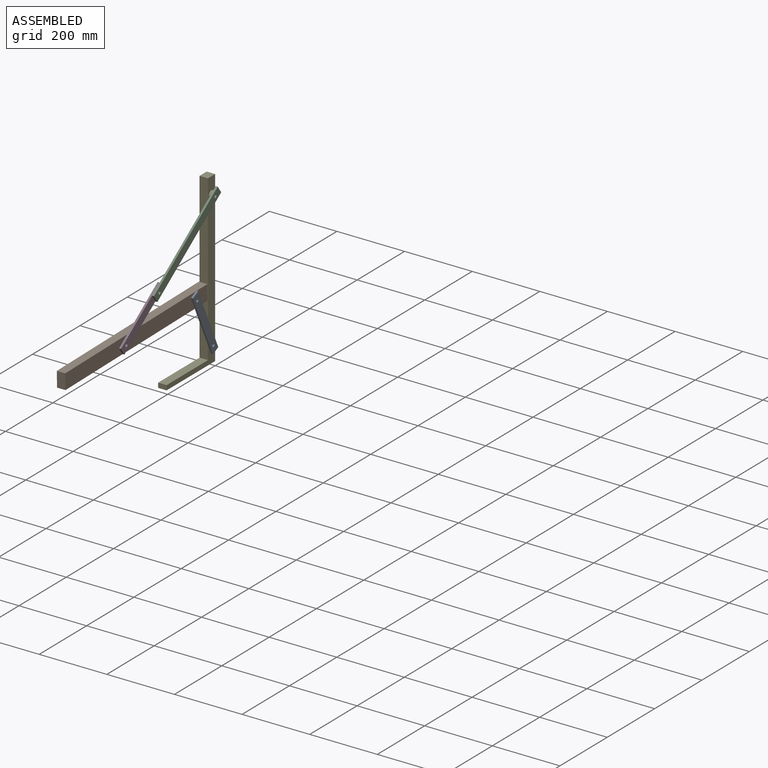
[diagram: assembled view]
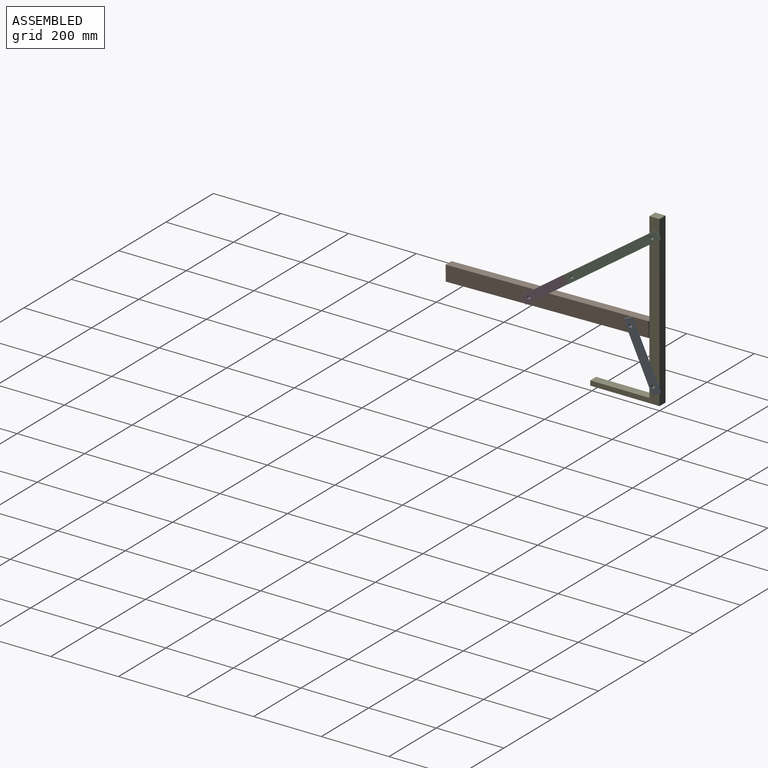
[diagram: assembled view, second angle]
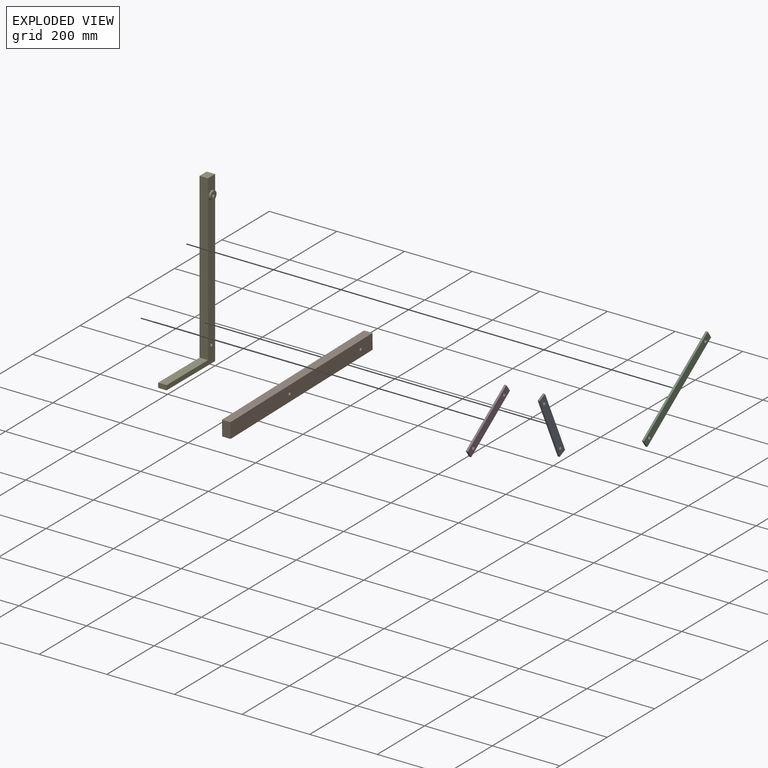
[diagram: exploded view]
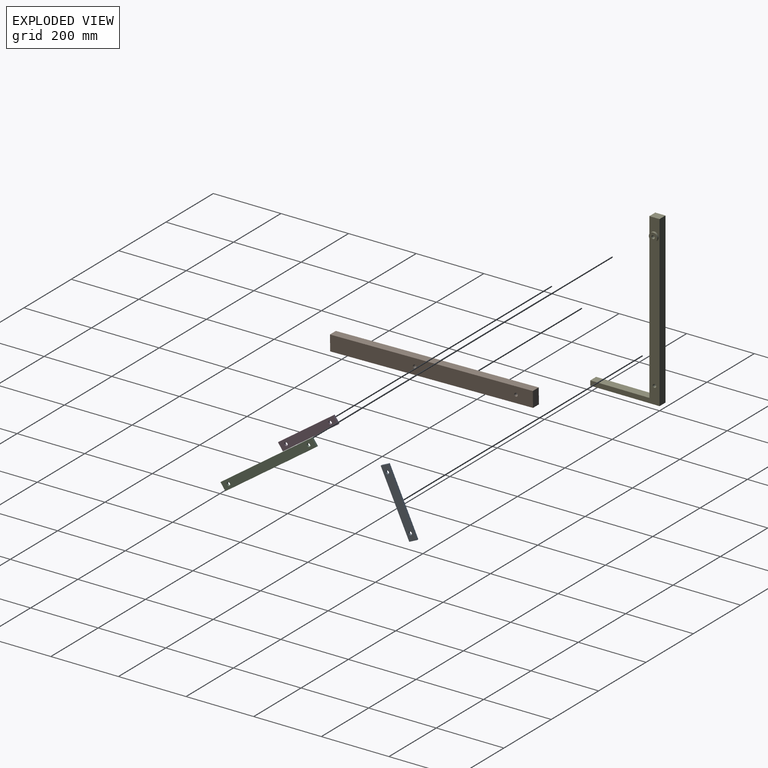
[diagram: exploded view, second angle]
ASSEMBLY  parts=5 mates=6
PART A: 8 faces, bbox 6x200x25 mm
  f0: plane 200x6mm, normal (0,0,1), area 1200mm2, adj f1,f3,f4,f5
  f1: plane 25x6mm, normal (0,-1,0), area 150mm2, adj f0,f2,f4,f5
  f2: plane 200x6mm, normal (0,0,-1), area 1200mm2, adj f1,f3,f4,f5
  f3: plane 25x6mm, normal (0,1,0), area 150mm2, adj f0,f2,f4,f5
  f4: plane 200x25mm, normal (1,0,0), area 4842.9mm2, adj f0,f1,f2,f3,f6,f7
  f5: plane 200x25mm, normal (-1,0,0), area 4842.9mm2, adj f0,f1,f2,f3,f6,f7
  f6: cylinder r=5mm len=10mm, axis (1,0,0), area 188.5mm2, adj f4,f5
  f7: cylinder r=5mm len=10mm, axis (1,0,0), area 188.5mm2, adj f4,f5
PART B: 8 faces, bbox 25x600x45 mm
  f0: plane 600x25mm, normal (0,0,-1), area 15000mm2, adj f1,f3,f4,f5
  f1: plane 45x25mm, normal (0,1,0), area 1125mm2, adj f0,f2,f4,f5
  f2: plane 600x25mm, normal (0,0,1), area 15000mm2, adj f1,f3,f4,f5
  f3: plane 45x25mm, normal (0,-1,0), area 1125mm2, adj f0,f2,f4,f5
  f4: plane 600x45mm, normal (-1,0,0), area 26842.9mm2, adj f0,f1,f2,f3,f6,f7
  f5: plane 600x45mm, normal (1,0,0), area 26842.9mm2, adj f0,f1,f2,f3,f6,f7
  f6: cylinder r=5mm len=25mm, axis (1,0,0), area 785.4mm2, adj f4,f5
  f7: cylinder r=5mm len=25mm, axis (1,0,0), area 785.4mm2, adj f4,f5
PART C: 8 faces, bbox 6x330x25 mm
  f0: plane 330x6mm, normal (0,0,1), area 1980mm2, adj f1,f3,f4,f5
  f1: plane 25x6mm, normal (0,-1,0), area 150mm2, adj f0,f2,f4,f5
  f2: plane 330x6mm, normal (0,0,-1), area 1980mm2, adj f1,f3,f4,f5
  f3: plane 25x6mm, normal (0,1,0), area 150mm2, adj f0,f2,f4,f5
  f4: plane 330x25mm, normal (1,0,0), area 8092.9mm2, adj f0,f1,f2,f3,f6,f7
  f5: plane 330x25mm, normal (-1,0,0), area 8092.9mm2, adj f0,f1,f2,f3,f6,f7
  f6: cylinder r=5mm len=10mm, axis (1,0,0), area 188.5mm2, adj f4,f5
  f7: cylinder r=5mm len=10mm, axis (1,0,0), area 188.5mm2, adj f4,f5
PART D: same geometry as A
PART E: 12 faces, bbox 31x205x500 mm
  f0: plane 500x25mm, normal (0,1,0), area 12500mm2, adj f1,f3,f4,f5
  f1: plane 30x25mm, normal (0,0,1), area 750mm2, adj f0,f2,f3,f4
  f2: plane 486x25mm, normal (0,-1,0), area 12150mm2, adj f1,f3,f4,f10
  f3: plane 500x205mm, normal (-1,0,0), area 17292.9mm2, adj f0,f1,f2,f5,f6,f7,f10,f11
  f4: plane 500x205mm, normal (1,0,0), area 16880.6mm2, adj f0,f1,f2,f5,f7,f8,f10,f11
  f5: plane 205x25mm, normal (0,0,-1), area 5125mm2, adj f0,f3,f4,f11
  f6: cylinder r=5mm len=31mm, axis (1,0,0), area 973.9mm2, adj f3,f9
  f7: cylinder r=5mm len=25mm, axis (1,0,0), area 785.4mm2, adj f3,f4
  f8: cylinder r=12.5mm len=25mm, axis (-1,0,0), area 471.2mm2, adj f4,f9
  f9: plane 25x25mm, normal (1,0,0), area 412.3mm2, adj f6,f8
  f10: plane 175x25mm, normal (0,0,1), area 4375mm2, adj f2,f3,f4,f11
  f11: plane 25x14mm, normal (0,-1,0), area 350mm2, adj f3,f4,f5,f10
PLACE A rot(axis=(-1,0,0),65deg) t=(0,46.13,-230.64)mm
PLACE B rot(axis=(1,0,0),0.9deg) t=(0,10.99,259.64)mm
PLACE C rot(axis=(1,0,0),35.2deg) t=(6,207.85,471.14)mm
PLACE D rot(axis=(1,0,0),35.2deg) t=(0,13.46,392.72)mm
PLACE E rot(axis=(1,0,0),0deg) t=(0,0,250)mm
MATE revolute C.f7 <-> D.f6  axis (-1,0,0) through (6,-251.83,282.64)mm
MATE revolute E.f6 <-> C.f6  axis (1,0,0) through (6,-15,450)mm
MATE revolute E.f7 <-> A.f6  axis (1,0,0) through (0,-15,50)mm
MATE revolute B.f7 <-> D.f7  axis (1,0,0) through (0,-382.5,190.3)mm
MATE planar D.f5 <-> B.f5  axis (-1,0,0) through (0,-317.17,236.47)mm
MATE revolute B.f6 <-> A.f7  axis (1,0,0) through (0,-82.62,195.01)mm
